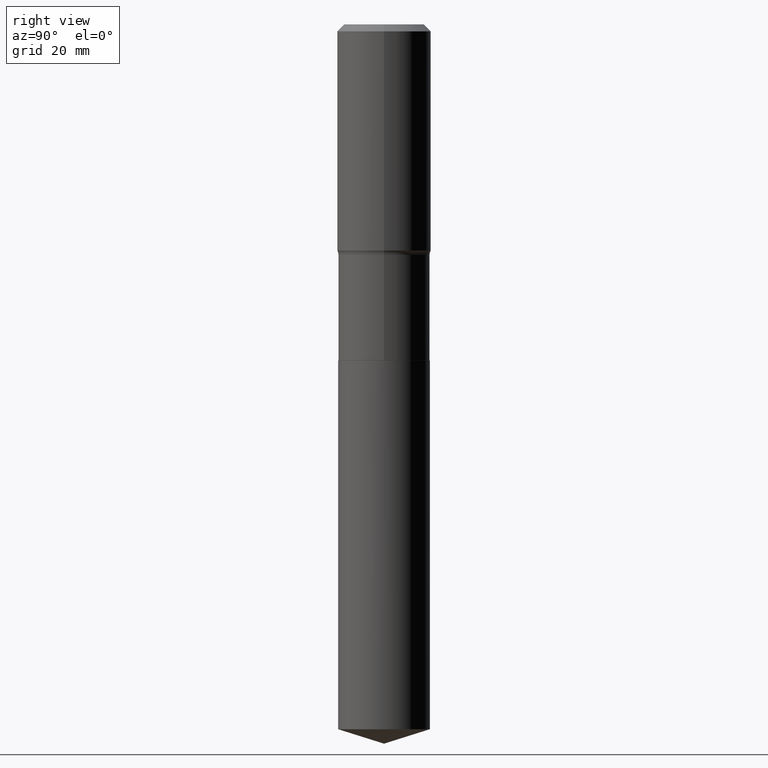
[diagram: clean part render]
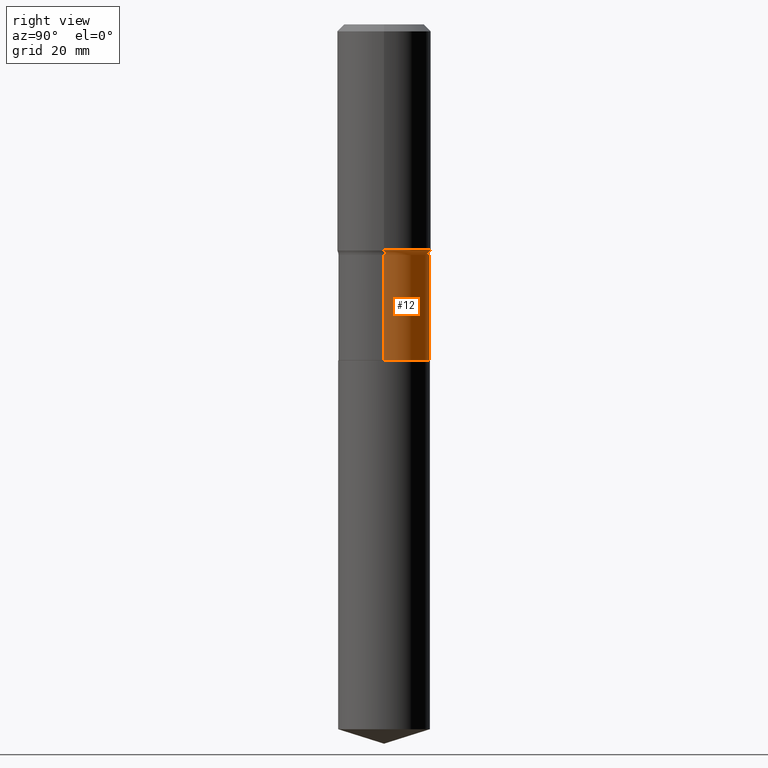
[diagram: same view with one face highlighted and labeled with its STEP entity id]
A machine part, right view. The second image highlights one B-rep face of the part: STEP entity #12.
In plain terms, the highlighted cylindrical surface (partial cylindrical patch) has radius 9.7498 mm, axis along (-0, 0, 1).
Its self-contained STEP definition (entity closure, byte-faithful):
#5 = CARTESIAN_POINT ( 'NONE',  ( 0.3838500000000000800, -1.250683530387001944E-14, -2.814399999999999569 ) ) ;
#12 = ADVANCED_FACE ( 'NONE', ( #277 ), #430, .T. ) ;
#51 = DIRECTION ( 'NONE',  ( -2.445468806185136597E-29, 3.491481338843145583E-15, 1.000000000000000000 ) ) ;
#62 = ORIENTED_EDGE ( 'NONE', *, *, #91, .T. ) ;
#64 = EDGE_CURVE ( 'NONE', #468, #281, #317, .T. ) ;
#85 = CARTESIAN_POINT ( 'NONE',  ( 0.000000000000000000, 0.000000000000000000, 0.000000000000000000 ) ) ;
#89 = DIRECTION ( 'NONE',  ( 1.000000000000000000, -6.982962677686267499E-15, 4.876176775795935793E-29 ) ) ;
#91 = EDGE_CURVE ( 'NONE', #281, #325, #448, .T. ) ;
#92 = DIRECTION ( 'NONE',  ( 1.000000000000000000, -6.982962677686266711E-15, 0.000000000000000000 ) ) ;
#99 = AXIS2_PLACEMENT_3D ( 'NONE', #377, #151, #293 ) ;
#107 = EDGE_LOOP ( 'NONE', ( #489, #62, #143, #322 ) ) ;
#128 = AXIS2_PLACEMENT_3D ( 'NONE', #85, #466, #89 ) ;
#143 = ORIENTED_EDGE ( 'NONE', *, *, #336, .F. ) ;
#151 = DIRECTION ( 'NONE',  ( -2.445468806185136597E-29, 3.491481338843145583E-15, 1.000000000000000000 ) ) ;
#178 = AXIS2_PLACEMENT_3D ( 'NONE', #433, #51, #92 ) ;
#192 = DIRECTION ( 'NONE',  ( -2.445468806185136877E-29, 3.491481338843145188E-15, 1.000000000000000000 ) ) ;
#229 = CARTESIAN_POINT ( 'NONE',  ( 0.3838499999999999135, -2.680410223829873215E-15, 1.871720455389269636E-29 ) ) ;
#264 = LINE ( 'NONE', #229, #482 ) ;
#276 = CARTESIAN_POINT ( 'NONE',  ( -0.3838499999999998580, -5.558565222127407178E-15, -1.931999999999999940 ) ) ;
#277 = FACE_OUTER_BOUND ( 'NONE', #107, .T. ) ;
#281 = VERTEX_POINT ( 'NONE', #491 ) ;
#290 = DIRECTION ( 'NONE',  ( -2.445468806185136877E-29, 3.491481338843145188E-15, 1.000000000000000000 ) ) ;
#293 = DIRECTION ( 'NONE',  ( 1.000000000000000000, -6.982962677686265922E-15, 0.000000000000000000 ) ) ;
#300 = CIRCLE ( 'NONE', #178, 0.3838499999999998580 ) ;
#313 = CARTESIAN_POINT ( 'NONE',  ( 0.3838499999999998580, -9.425952170474830034E-15, -1.931999999999999940 ) ) ;
#314 = VERTEX_POINT ( 'NONE', #313 ) ;
#317 = CIRCLE ( 'NONE', #99, 0.3838500000000000800 ) ;
#322 = ORIENTED_EDGE ( 'NONE', *, *, #478, .F. ) ;
#325 = VERTEX_POINT ( 'NONE', #276 ) ;
#336 = EDGE_CURVE ( 'NONE', #314, #325, #300, .T. ) ;
#377 = CARTESIAN_POINT ( 'NONE',  ( 6.882527408127446858E-29, -9.826425080040145830E-15, -2.814399999999999569 ) ) ;
#413 = CARTESIAN_POINT ( 'NONE',  ( -0.3838499999999999135, 2.727418291215143949E-15, -1.888133234394345397E-29 ) ) ;
#429 = VECTOR ( 'NONE', #290, 39.37007874015748143 ) ;
#430 = CYLINDRICAL_SURFACE ( 'NONE', #128, 0.3838499999999999135 ) ;
#433 = CARTESIAN_POINT ( 'NONE',  ( 4.724645733549684143E-29, -6.745541946644958002E-15, -1.931999999999999940 ) ) ;
#448 = LINE ( 'NONE', #413, #429 ) ;
#466 = DIRECTION ( 'NONE',  ( -2.445468806185136597E-29, 3.491481338843145583E-15, 1.000000000000000000 ) ) ;
#468 = VERTEX_POINT ( 'NONE', #5 ) ;
#478 = EDGE_CURVE ( 'NONE', #468, #314, #264, .T. ) ;
#482 = VECTOR ( 'NONE', #192, 39.37007874015748143 ) ;
#489 = ORIENTED_EDGE ( 'NONE', *, *, #64, .T. ) ;
#491 = CARTESIAN_POINT ( 'NONE',  ( -0.3838500000000000800, -5.558565222127405601E-15, -2.814399999999999569 ) ) ;